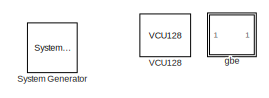
[diagram: root canvas - part 1/2, top center region]
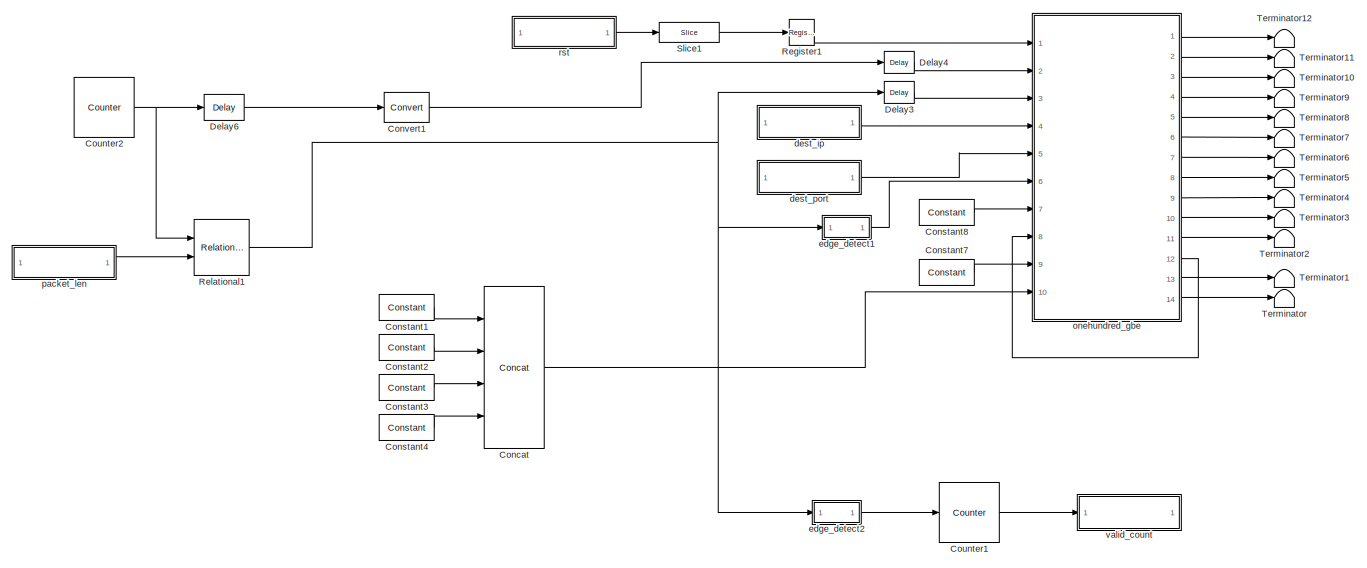
[diagram: root canvas - part 2/2, full width, bottom band]
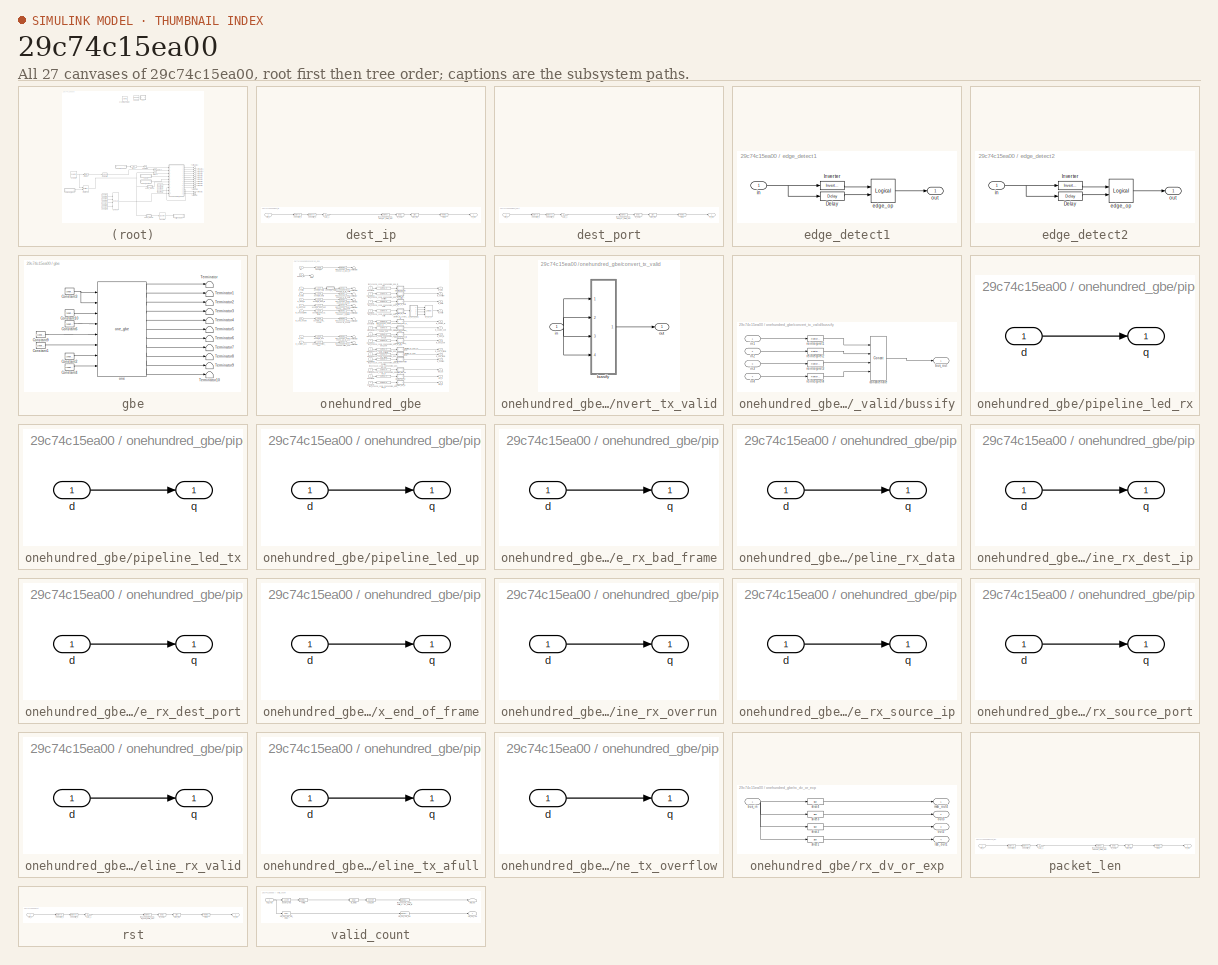
[diagram: thumbnail index - all 27 canvases of the model, root first then tree order]
MODEL slx_29c74c15ea00
KIND model
CONFIG AbsTol = auto
CONFIG EnableMultiTasking = off
CONFIG FixedStep = auto
CONFIG MaxStep = auto
CONFIG MinStep = auto
CONFIG RelTol = 1e-3
CONFIG SampleTimeConstraint = Unconstrained
CONFIG SolverName = VariableStepDiscrete
CONFIG StartTime = 0.0
CONFIG StopTime = 10.0
BLOCK [Reference]  System Generator  REF=xbsIndex_r4/ System Generator
  AttributesFormatString = System\nGenerator
  Ports = []
  SourceBlock = xbsIndex_r4/ System Generator
  SourceType = Xilinx System Generator Block
  Tag = genX
  UserDataPersistent = on
BLOCK [Reference] Concat  REF=xbsIndex_r4/Concat
  Ports = [4, 1]
  SourceBlock = xbsIndex_r4/Concat
  SourceType = Xilinx Bus Concatenator Block
BLOCK [Reference] Constant1  REF=xbsIndex_r4/Constant
  Ports = [0, 1]
  SourceBlock = xbsIndex_r4/Constant
  SourceType = Xilinx Constant Block Block
BLOCK [Reference] Constant2  REF=xbsIndex_r4/Constant
  Ports = [0, 1]
  SourceBlock = xbsIndex_r4/Constant
  SourceType = Xilinx Constant Block Block
BLOCK [Reference] Constant3  REF=xbsIndex_r4/Constant
  Ports = [0, 1]
  SourceBlock = xbsIndex_r4/Constant
  SourceType = Xilinx Constant Block Block
BLOCK [Reference] Constant4  REF=xbsIndex_r4/Constant
  Ports = [0, 1]
  SourceBlock = xbsIndex_r4/Constant
  SourceType = Xilinx Constant Block Block
BLOCK [Reference] Constant7  REF=xbsIndex_r4/Constant
  Ports = [0, 1]
  SourceBlock = xbsIndex_r4/Constant
  SourceType = Xilinx Constant Block Block
BLOCK [Reference] Constant8  REF=xbsIndex_r4/Constant
  Ports = [0, 1]
  SourceBlock = xbsIndex_r4/Constant
  SourceType = Xilinx Constant Block Block
BLOCK [Reference] Convert1  REF=xbsIndex_r4/Convert
  Ports = [1, 1]
  SourceBlock = xbsIndex_r4/Convert
  SourceType = Xilinx Type Converter Block
BLOCK [Reference] Counter1  REF=xbsIndex_r4/Counter
  Ports = [1, 1]
  SourceBlock = xbsIndex_r4/Counter
  SourceType = Xilinx Counter Block
BLOCK [Reference] Counter2  REF=xbsIndex_r4/Counter
  Ports = [0, 1]
  SourceBlock = xbsIndex_r4/Counter
  SourceType = Xilinx Counter Block
BLOCK [Reference] Delay3  REF=xbsIndex_r4/Delay
  Ports = [1, 1]
  SourceBlock = xbsIndex_r4/Delay
  SourceType = Xilinx Delay Block
BLOCK [Reference] Delay4  REF=xbsIndex_r4/Delay
  Ports = [1, 1]
  SourceBlock = xbsIndex_r4/Delay
  SourceType = Xilinx Delay Block
BLOCK [Reference] Delay6  REF=xbsIndex_r4/Delay
  Ports = [1, 1]
  SourceBlock = xbsIndex_r4/Delay
  SourceType = Xilinx Delay Block
BLOCK [Reference] Register1  REF=xbsIndex_r4/Register
  Ports = [1, 1]
  SourceBlock = xbsIndex_r4/Register
  SourceType = Xilinx Register Block
BLOCK [Reference] Relational1  REF=xbsIndex_r4/Relational
  Ports = [2, 1]
  SourceBlock = xbsIndex_r4/Relational
  SourceType = Xilinx Arithmetic Relational Operator Block
BLOCK [Reference] Slice1  REF=xbsIndex_r4/Slice
  Ports = [1, 1]
  SourceBlock = xbsIndex_r4/Slice
  SourceType = Xilinx Bit Slice Extractor Block
BLOCK [Terminator] Terminator
BLOCK [Terminator] Terminator1
BLOCK [Terminator] Terminator10
BLOCK [Terminator] Terminator11
BLOCK [Terminator] Terminator12
BLOCK [Terminator] Terminator2
BLOCK [Terminator] Terminator3
BLOCK [Terminator] Terminator4
BLOCK [Terminator] Terminator5
BLOCK [Terminator] Terminator6
BLOCK [Terminator] Terminator7
BLOCK [Terminator] Terminator8
BLOCK [Terminator] Terminator9
BLOCK [Reference] VCU128  REF=xps_library/Platforms/VCU128  (lib defined in mdl_00b5cec29cd0, mdl_02ab6ecaa3d1, +5 more)
  Ports = []
  SourceBlock = xps_library/Platforms/VCU128
  SourceProductName = CASPER XPS Blockset
  SourceType = xsg core config
  Tag = xps:xsg
BLOCK [SubSystem] dest_ip
  AncestorBlock = xps_library/Memory/software_register
  AttributesFormatString = 1input:uf32.0 = 32 bits
  Ports = [1, 1]
  RequestExecContextInheritance = off
  Tag = xps:sw_reg
BLOCK [DataTypeConversion] dest_ip/convert1_1
  LockScale = on
  OutDataTypeStr = fixdt('ufix32_En0')
  RndMeth = Floor
  SaturateOnIntegerOverflow = off
BLOCK [DataTypeConversion] dest_ip/convert2_1
  ConvertRealWorld = Stored Integer (SI)
  LockScale = on
  OutDataTypeStr = fixdt('ufix32_En0')
  RndMeth = Floor
  SaturateOnIntegerOverflow = off
BLOCK [Gain] dest_ip/gain_1
BLOCK [Outport] dest_ip/in_reg
  VectorParamsAs1DForOutWhenUnconnected = off
BLOCK [Reference] dest_ip/io_delay  REF=xbsIndex_r4/Delay
  Ports = [1, 1]
  SourceBlock = xbsIndex_r4/Delay
  SourceType = Xilinx Delay Block
BLOCK [Reference] dest_ip/reint1  REF=xbsIndex_r4/Reinterpret
  Ports = [1, 1]
  SourceBlock = xbsIndex_r4/Reinterpret
  SourceType = Xilinx Type Reinterpreter Block
BLOCK [Inport] dest_ip/sim_1
BLOCK [Reference] dest_ip/slice_reg  REF=xbsIndex_r4/Slice
  Ports = [1, 1]
  SourceBlock = xbsIndex_r4/Slice
  SourceType = Xilinx Bit Slice Extractor Block
BLOCK [Reference] dest_ip/test_vcu128_100g_dest_ip_user_data_out  REF=xbsIndex_r4/Gateway In
  Ports = [1, 1]
  SourceBlock = xbsIndex_r4/Gateway In
  SourceType = Xilinx Gateway In Block
BLOCK [SubSystem] dest_port
  AncestorBlock = xps_library/Memory/software_register
  AttributesFormatString = 1input:uf16.0 = 16 bits
  Ports = [1, 1]
  RequestExecContextInheritance = off
  Tag = xps:sw_reg
BLOCK [DataTypeConversion] dest_port/convert1_1
  LockScale = on
  OutDataTypeStr = fixdt('ufix16_En0')
  RndMeth = Floor
  SaturateOnIntegerOverflow = off
BLOCK [DataTypeConversion] dest_port/convert2_1
  ConvertRealWorld = Stored Integer (SI)
  LockScale = on
  OutDataTypeStr = fixdt('ufix16_En0')
  RndMeth = Floor
  SaturateOnIntegerOverflow = off
BLOCK [Gain] dest_port/gain_1
BLOCK [Outport] dest_port/in_reg
  VectorParamsAs1DForOutWhenUnconnected = off
BLOCK [Reference] dest_port/io_delay  REF=xbsIndex_r4/Delay
  Ports = [1, 1]
  SourceBlock = xbsIndex_r4/Delay
  SourceType = Xilinx Delay Block
BLOCK [Reference] dest_port/reint1  REF=xbsIndex_r4/Reinterpret
  Ports = [1, 1]
  SourceBlock = xbsIndex_r4/Reinterpret
  SourceType = Xilinx Type Reinterpreter Block
BLOCK [Inport] dest_port/sim_1
BLOCK [Reference] dest_port/slice_reg  REF=xbsIndex_r4/Slice
  Ports = [1, 1]
  SourceBlock = xbsIndex_r4/Slice
  SourceType = Xilinx Bit Slice Extractor Block
BLOCK [Reference] dest_port/test_vcu128_100g_dest_port_user_data_out  REF=xbsIndex_r4/Gateway In
  Ports = [1, 1]
  SourceBlock = xbsIndex_r4/Gateway In
  SourceType = Xilinx Gateway In Block
BLOCK [SubSystem] edge_detect1
  AncestorBlock = casper_library_misc/edge_detect
  AttributesFormatString = falling edges\nactive high
  Ports = [1, 1]
  RequestExecContextInheritance = off
  UserDataPersistent = on
BLOCK [Reference] edge_detect1/Delay  REF=xbsIndex_r4/Delay
  Ports = [1, 1]
  SourceBlock = xbsIndex_r4/Delay
  SourceType = Xilinx Delay Block
BLOCK [Reference] edge_detect1/Inverter  REF=xbsIndex_r4/Inverter
  Ports = [1, 1]
  SourceBlock = xbsIndex_r4/Inverter
  SourceType = Xilinx Inverter Block
BLOCK [Reference] edge_detect1/edge_op  REF=xbsIndex_r4/Logical
  Ports = [2, 1]
  SourceBlock = xbsIndex_r4/Logical
  SourceType = Xilinx Logical Block Block
BLOCK [Inport] edge_detect1/in
BLOCK [Outport] edge_detect1/out
  VectorParamsAs1DForOutWhenUnconnected = off
BLOCK [SubSystem] edge_detect2
  AncestorBlock = casper_library_misc/edge_detect
  AttributesFormatString = rising edges\nactive high
  Ports = [1, 1]
  RequestExecContextInheritance = off
  UserDataPersistent = on
BLOCK [Reference] edge_detect2/Delay  REF=xbsIndex_r4/Delay
  Ports = [1, 1]
  SourceBlock = xbsIndex_r4/Delay
  SourceType = Xilinx Delay Block
BLOCK [Reference] edge_detect2/Inverter  REF=xbsIndex_r4/Inverter
  Ports = [1, 1]
  SourceBlock = xbsIndex_r4/Inverter
  SourceType = Xilinx Inverter Block
BLOCK [Reference] edge_detect2/edge_op  REF=xbsIndex_r4/Logical
  Ports = [2, 1]
  SourceBlock = xbsIndex_r4/Logical
  SourceType = Xilinx Logical Block Block
BLOCK [Inport] edge_detect2/in
BLOCK [Outport] edge_detect2/out
  VectorParamsAs1DForOutWhenUnconnected = off
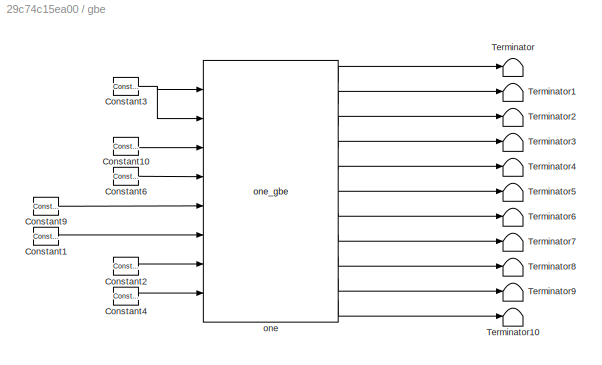
BLOCK [SubSystem] gbe
  Ports = []
  RequestExecContextInheritance = off
BLOCK [Reference] gbe/Constant1  REF=xbsIndex_r4/Constant
  Ports = [0, 1]
  SourceBlock = xbsIndex_r4/Constant
  SourceType = Xilinx Constant Block Block
BLOCK [Reference] gbe/Constant10  REF=xbsIndex_r4/Constant
  Ports = [0, 1]
  SourceBlock = xbsIndex_r4/Constant
  SourceType = Xilinx Constant Block Block
BLOCK [Reference] gbe/Constant2  REF=xbsIndex_r4/Constant
  Ports = [0, 1]
  SourceBlock = xbsIndex_r4/Constant
  SourceType = Xilinx Constant Block Block
BLOCK [Reference] gbe/Constant3  REF=xbsIndex_r4/Constant
  Ports = [0, 1]
  SourceBlock = xbsIndex_r4/Constant
  SourceType = Xilinx Constant Block Block
BLOCK [Reference] gbe/Constant4  REF=xbsIndex_r4/Constant
  Ports = [0, 1]
  SourceBlock = xbsIndex_r4/Constant
  SourceType = Xilinx Constant Block Block
BLOCK [Reference] gbe/Constant6  REF=xbsIndex_r4/Constant
  Ports = [0, 1]
  SourceBlock = xbsIndex_r4/Constant
  SourceType = Xilinx Constant Block Block
BLOCK [Reference] gbe/Constant9  REF=xbsIndex_r4/Constant
  Ports = [0, 1]
  SourceBlock = xbsIndex_r4/Constant
  SourceType = Xilinx Constant Block Block
BLOCK [Terminator] gbe/Terminator
BLOCK [Terminator] gbe/Terminator1
BLOCK [Terminator] gbe/Terminator10
BLOCK [Terminator] gbe/Terminator2
BLOCK [Terminator] gbe/Terminator3
BLOCK [Terminator] gbe/Terminator4
BLOCK [Terminator] gbe/Terminator5
BLOCK [Terminator] gbe/Terminator6
BLOCK [Terminator] gbe/Terminator7
BLOCK [Terminator] gbe/Terminator8
BLOCK [Terminator] gbe/Terminator9
BLOCK [Reference] gbe/one  REF=xps_library/IO/one_gbe  (lib defined in mdl_00b5cec29cd0, mdl_02ab6ecaa3d1, +5 more)
  Ports = [8, 11]
  SourceBlock = xps_library/IO/one_gbe
  SourceProductName = CASPER XPS Blockset
  SourceType = one_GbE
  Tag = xps:onegbe
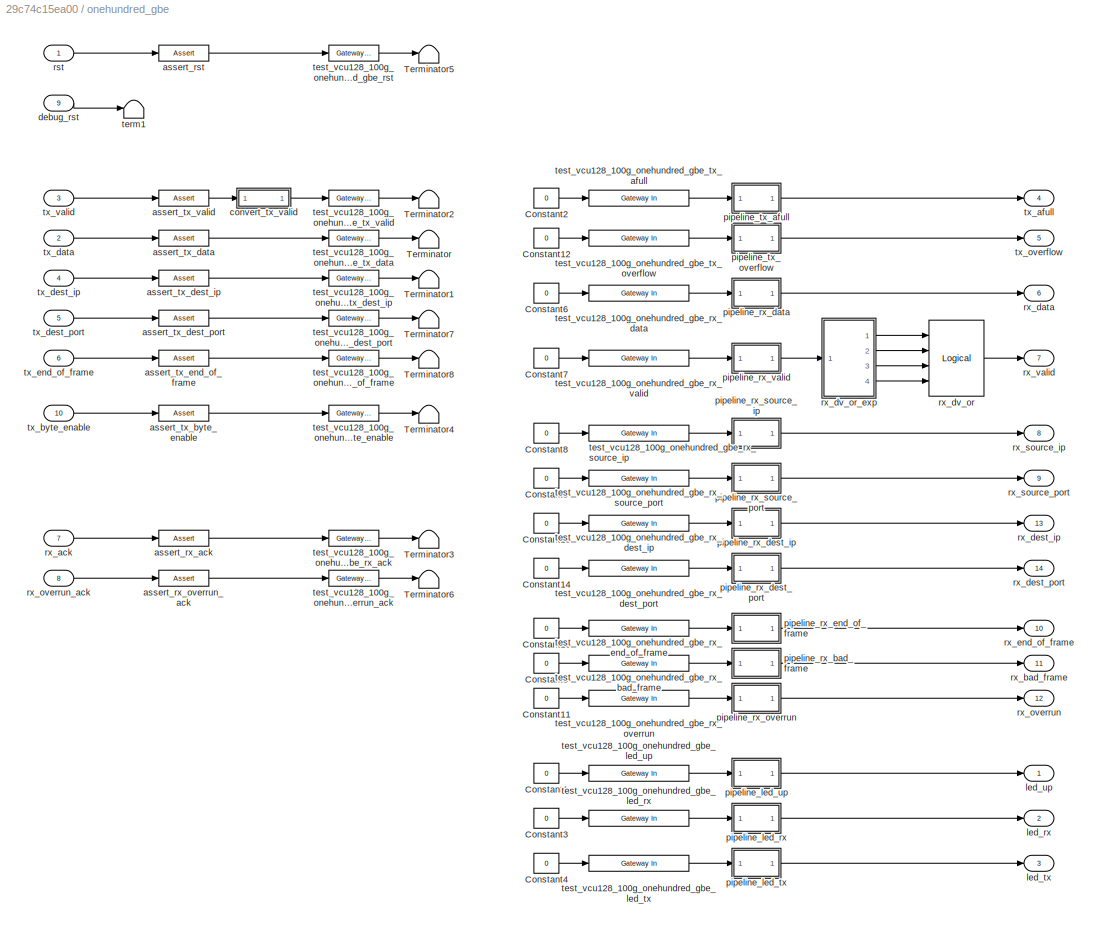
BLOCK [SubSystem] onehundred_gbe
  AncestorBlock = xps_library/IO/onehundred_gbe
  AttributesFormatString = incoming_latency=0
  Ports = [10, 14]
  RequestExecContextInheritance = off
  Tag = xps:onehundred_gbe
BLOCK [Constant] onehundred_gbe/Constant1
  Value = 0
BLOCK [Constant] onehundred_gbe/Constant10
  Value = 0
BLOCK [Constant] onehundred_gbe/Constant11
  Value = 0
BLOCK [Constant] onehundred_gbe/Constant12
  Value = 0
BLOCK [Constant] onehundred_gbe/Constant13
  Value = 0
BLOCK [Constant] onehundred_gbe/Constant14
  Value = 0
BLOCK [Constant] onehundred_gbe/Constant2
  Value = 0
BLOCK [Constant] onehundred_gbe/Constant3
  Value = 0
BLOCK [Constant] onehundred_gbe/Constant4
  Value = 0
BLOCK [Constant] onehundred_gbe/Constant5
  Value = 0
BLOCK [Constant] onehundred_gbe/Constant6
  Value = 0
BLOCK [Constant] onehundred_gbe/Constant7
  Value = 0
BLOCK [Constant] onehundred_gbe/Constant8
  Value = 0
BLOCK [Constant] onehundred_gbe/Constant9
  Value = 0
BLOCK [Terminator] onehundred_gbe/Terminator
BLOCK [Terminator] onehundred_gbe/Terminator1
BLOCK [Terminator] onehundred_gbe/Terminator2
BLOCK [Terminator] onehundred_gbe/Terminator3
BLOCK [Terminator] onehundred_gbe/Terminator4
BLOCK [Terminator] onehundred_gbe/Terminator5
BLOCK [Terminator] onehundred_gbe/Terminator6
BLOCK [Terminator] onehundred_gbe/Terminator7
BLOCK [Terminator] onehundred_gbe/Terminator8
BLOCK [Reference] onehundred_gbe/assert_rst  REF=xbsIndex_r4/Assert
  Ports = [1, 1]
  SourceBlock = xbsIndex_r4/Assert
  SourceType = Xilinx Assert Block
BLOCK [Reference] onehundred_gbe/assert_rx_ack  REF=xbsIndex_r4/Assert
  Ports = [1, 1]
  SourceBlock = xbsIndex_r4/Assert
  SourceType = Xilinx Assert Block
BLOCK [Reference] onehundred_gbe/assert_rx_overrun_ack  REF=xbsIndex_r4/Assert
  Ports = [1, 1]
  SourceBlock = xbsIndex_r4/Assert
  SourceType = Xilinx Assert Block
BLOCK [Reference] onehundred_gbe/assert_tx_byte_enable  REF=xbsIndex_r4/Assert
  Ports = [1, 1]
  SourceBlock = xbsIndex_r4/Assert
  SourceType = Xilinx Assert Block
BLOCK [Reference] onehundred_gbe/assert_tx_data  REF=xbsIndex_r4/Assert
  Ports = [1, 1]
  SourceBlock = xbsIndex_r4/Assert
  SourceType = Xilinx Assert Block
BLOCK [Reference] onehundred_gbe/assert_tx_dest_ip  REF=xbsIndex_r4/Assert
  Ports = [1, 1]
  SourceBlock = xbsIndex_r4/Assert
  SourceType = Xilinx Assert Block
BLOCK [Reference] onehundred_gbe/assert_tx_dest_port  REF=xbsIndex_r4/Assert
  Ports = [1, 1]
  SourceBlock = xbsIndex_r4/Assert
  SourceType = Xilinx Assert Block
BLOCK [Reference] onehundred_gbe/assert_tx_end_of_frame  REF=xbsIndex_r4/Assert
  Ports = [1, 1]
  SourceBlock = xbsIndex_r4/Assert
  SourceType = Xilinx Assert Block
BLOCK [Reference] onehundred_gbe/assert_tx_valid  REF=xbsIndex_r4/Assert
  Ports = [1, 1]
  SourceBlock = xbsIndex_r4/Assert
  SourceType = Xilinx Assert Block
BLOCK [SubSystem] onehundred_gbe/convert_tx_valid
  AncestorBlock = casper_library_bus/bus_replicate
  Ports = [1, 1]
  RequestExecContextInheritance = off
  UserDataPersistent = on
BLOCK [SubSystem] onehundred_gbe/convert_tx_valid/bussify
  AncestorBlock = casper_library_flow_control/bus_create
  Ports = [4, 1]
  RequestExecContextInheritance = off
  UserDataPersistent = on
BLOCK [Outport] onehundred_gbe/convert_tx_valid/bussify/bus_out
  VectorParamsAs1DForOutWhenUnconnected = off
BLOCK [Reference] onehundred_gbe/convert_tx_valid/bussify/concatenate  REF=xbsIndex_r4/Concat
  Ports = [4, 1]
  SourceBlock = xbsIndex_r4/Concat
  SourceType = Xilinx Bus Concatenator Block
BLOCK [Inport] onehundred_gbe/convert_tx_valid/bussify/in1
BLOCK [Inport] onehundred_gbe/convert_tx_valid/bussify/in2
  Port = 2
BLOCK [Inport] onehundred_gbe/convert_tx_valid/bussify/in3
  Port = 3
BLOCK [Inport] onehundred_gbe/convert_tx_valid/bussify/in4
  Port = 4
BLOCK [Reference] onehundred_gbe/convert_tx_valid/bussify/reinterpret1  REF=xbsIndex_r4/Reinterpret
  Ports = [1, 1]
  SourceBlock = xbsIndex_r4/Reinterpret
  SourceType = Xilinx Type Reinterpreter Block
BLOCK [Reference] onehundred_gbe/convert_tx_valid/bussify/reinterpret2  REF=xbsIndex_r4/Reinterpret
  Ports = [1, 1]
  SourceBlock = xbsIndex_r4/Reinterpret
  SourceType = Xilinx Type Reinterpreter Block
BLOCK [Reference] onehundred_gbe/convert_tx_valid/bussify/reinterpret3  REF=xbsIndex_r4/Reinterpret
  Ports = [1, 1]
  SourceBlock = xbsIndex_r4/Reinterpret
  SourceType = Xilinx Type Reinterpreter Block
BLOCK [Reference] onehundred_gbe/convert_tx_valid/bussify/reinterpret4  REF=xbsIndex_r4/Reinterpret
  Ports = [1, 1]
  SourceBlock = xbsIndex_r4/Reinterpret
  SourceType = Xilinx Type Reinterpreter Block
BLOCK [Inport] onehundred_gbe/convert_tx_valid/in
BLOCK [Outport] onehundred_gbe/convert_tx_valid/out
  VectorParamsAs1DForOutWhenUnconnected = off
BLOCK [Inport] onehundred_gbe/debug_rst
  Port = 9
BLOCK [Outport] onehundred_gbe/led_rx
  Port = 2
  VectorParamsAs1DForOutWhenUnconnected = off
BLOCK [Outport] onehundred_gbe/led_tx
  Port = 3
  VectorParamsAs1DForOutWhenUnconnected = off
BLOCK [Outport] onehundred_gbe/led_up
  VectorParamsAs1DForOutWhenUnconnected = off
BLOCK [SubSystem] onehundred_gbe/pipeline_led_rx
  AncestorBlock = casper_library_delays/pipeline
  AttributesFormatString = Latency = %<latency>
  Ports = [1, 1]
  RequestExecContextInheritance = off
  UserDataPersistent = on
BLOCK [Inport] onehundred_gbe/pipeline_led_rx/d
BLOCK [Outport] onehundred_gbe/pipeline_led_rx/q
  VectorParamsAs1DForOutWhenUnconnected = off
BLOCK [SubSystem] onehundred_gbe/pipeline_led_tx
  AncestorBlock = casper_library_delays/pipeline
  AttributesFormatString = Latency = %<latency>
  Ports = [1, 1]
  RequestExecContextInheritance = off
  UserDataPersistent = on
BLOCK [Inport] onehundred_gbe/pipeline_led_tx/d
BLOCK [Outport] onehundred_gbe/pipeline_led_tx/q
  VectorParamsAs1DForOutWhenUnconnected = off
BLOCK [SubSystem] onehundred_gbe/pipeline_led_up
  AncestorBlock = casper_library_delays/pipeline
  AttributesFormatString = Latency = %<latency>
  Ports = [1, 1]
  RequestExecContextInheritance = off
  UserDataPersistent = on
BLOCK [Inport] onehundred_gbe/pipeline_led_up/d
BLOCK [Outport] onehundred_gbe/pipeline_led_up/q
  VectorParamsAs1DForOutWhenUnconnected = off
BLOCK [SubSystem] onehundred_gbe/pipeline_rx_bad_frame
  AncestorBlock = casper_library_delays/pipeline
  AttributesFormatString = Latency = %<latency>
  Ports = [1, 1]
  RequestExecContextInheritance = off
  UserDataPersistent = on
BLOCK [Inport] onehundred_gbe/pipeline_rx_bad_frame/d
BLOCK [Outport] onehundred_gbe/pipeline_rx_bad_frame/q
  VectorParamsAs1DForOutWhenUnconnected = off
BLOCK [SubSystem] onehundred_gbe/pipeline_rx_data
  AncestorBlock = casper_library_delays/pipeline
  AttributesFormatString = Latency = %<latency>
  Ports = [1, 1]
  RequestExecContextInheritance = off
  UserDataPersistent = on
BLOCK [Inport] onehundred_gbe/pipeline_rx_data/d
BLOCK [Outport] onehundred_gbe/pipeline_rx_data/q
  VectorParamsAs1DForOutWhenUnconnected = off
BLOCK [SubSystem] onehundred_gbe/pipeline_rx_dest_ip
  AncestorBlock = casper_library_delays/pipeline
  AttributesFormatString = Latency = %<latency>
  Ports = [1, 1]
  RequestExecContextInheritance = off
  UserDataPersistent = on
BLOCK [Inport] onehundred_gbe/pipeline_rx_dest_ip/d
BLOCK [Outport] onehundred_gbe/pipeline_rx_dest_ip/q
  VectorParamsAs1DForOutWhenUnconnected = off
BLOCK [SubSystem] onehundred_gbe/pipeline_rx_dest_port
  AncestorBlock = casper_library_delays/pipeline
  AttributesFormatString = Latency = %<latency>
  Ports = [1, 1]
  RequestExecContextInheritance = off
  UserDataPersistent = on
BLOCK [Inport] onehundred_gbe/pipeline_rx_dest_port/d
BLOCK [Outport] onehundred_gbe/pipeline_rx_dest_port/q
  VectorParamsAs1DForOutWhenUnconnected = off
BLOCK [SubSystem] onehundred_gbe/pipeline_rx_end_of_frame
  AncestorBlock = casper_library_delays/pipeline
  AttributesFormatString = Latency = %<latency>
  Ports = [1, 1]
  RequestExecContextInheritance = off
  UserDataPersistent = on
BLOCK [Inport] onehundred_gbe/pipeline_rx_end_of_frame/d
BLOCK [Outport] onehundred_gbe/pipeline_rx_end_of_frame/q
  VectorParamsAs1DForOutWhenUnconnected = off
BLOCK [SubSystem] onehundred_gbe/pipeline_rx_overrun
  AncestorBlock = casper_library_delays/pipeline
  AttributesFormatString = Latency = %<latency>
  Ports = [1, 1]
  RequestExecContextInheritance = off
  UserDataPersistent = on
BLOCK [Inport] onehundred_gbe/pipeline_rx_overrun/d
BLOCK [Outport] onehundred_gbe/pipeline_rx_overrun/q
  VectorParamsAs1DForOutWhenUnconnected = off
BLOCK [SubSystem] onehundred_gbe/pipeline_rx_source_ip
  AncestorBlock = casper_library_delays/pipeline
  AttributesFormatString = Latency = %<latency>
  Ports = [1, 1]
  RequestExecContextInheritance = off
  UserDataPersistent = on
BLOCK [Inport] onehundred_gbe/pipeline_rx_source_ip/d
BLOCK [Outport] onehundred_gbe/pipeline_rx_source_ip/q
  VectorParamsAs1DForOutWhenUnconnected = off
BLOCK [SubSystem] onehundred_gbe/pipeline_rx_source_port
  AncestorBlock = casper_library_delays/pipeline
  AttributesFormatString = Latency = %<latency>
  Ports = [1, 1]
  RequestExecContextInheritance = off
  UserDataPersistent = on
BLOCK [Inport] onehundred_gbe/pipeline_rx_source_port/d
BLOCK [Outport] onehundred_gbe/pipeline_rx_source_port/q
  VectorParamsAs1DForOutWhenUnconnected = off
BLOCK [SubSystem] onehundred_gbe/pipeline_rx_valid
  AncestorBlock = casper_library_delays/pipeline
  AttributesFormatString = Latency = %<latency>
  Ports = [1, 1]
  RequestExecContextInheritance = off
  UserDataPersistent = on
BLOCK [Inport] onehundred_gbe/pipeline_rx_valid/d
BLOCK [Outport] onehundred_gbe/pipeline_rx_valid/q
  VectorParamsAs1DForOutWhenUnconnected = off
BLOCK [SubSystem] onehundred_gbe/pipeline_tx_afull
  AncestorBlock = casper_library_delays/pipeline
  AttributesFormatString = Latency = %<latency>
  Ports = [1, 1]
  RequestExecContextInheritance = off
  UserDataPersistent = on
BLOCK [Inport] onehundred_gbe/pipeline_tx_afull/d
BLOCK [Outport] onehundred_gbe/pipeline_tx_afull/q
  VectorParamsAs1DForOutWhenUnconnected = off
BLOCK [SubSystem] onehundred_gbe/pipeline_tx_overflow
  AncestorBlock = casper_library_delays/pipeline
  AttributesFormatString = Latency = %<latency>
  Ports = [1, 1]
  RequestExecContextInheritance = off
  UserDataPersistent = on
BLOCK [Inport] onehundred_gbe/pipeline_tx_overflow/d
BLOCK [Outport] onehundred_gbe/pipeline_tx_overflow/q
  VectorParamsAs1DForOutWhenUnconnected = off
BLOCK [Inport] onehundred_gbe/rst
BLOCK [Inport] onehundred_gbe/rx_ack
  Port = 7
BLOCK [Outport] onehundred_gbe/rx_bad_frame
  Port = 11
  VectorParamsAs1DForOutWhenUnconnected = off
BLOCK [Outport] onehundred_gbe/rx_data
  Port = 6
  VectorParamsAs1DForOutWhenUnconnected = off
BLOCK [Outport] onehundred_gbe/rx_dest_ip
  Port = 13
  VectorParamsAs1DForOutWhenUnconnected = off
BLOCK [Outport] onehundred_gbe/rx_dest_port
  Port = 14
  VectorParamsAs1DForOutWhenUnconnected = off
BLOCK [Reference] onehundred_gbe/rx_dv_or  REF=xbsIndex_r4/Logical
  Ports = [4, 1]
  SourceBlock = xbsIndex_r4/Logical
  SourceType = Xilinx Logical Block Block
BLOCK [SubSystem] onehundred_gbe/rx_dv_or_exp
  AncestorBlock = casper_library_flow_control/bus_expand
  AttributesFormatString = 4 outputs
  Ports = [1, 4]
  RequestExecContextInheritance = off
  UserDataPersistent = on
BLOCK [Inport] onehundred_gbe/rx_dv_or_exp/bus_in
BLOCK [Outport] onehundred_gbe/rx_dv_or_exp/lsb_out1
  Port = 4
  VectorParamsAs1DForOutWhenUnconnected = off
BLOCK [Outport] onehundred_gbe/rx_dv_or_exp/msb_out4
  VectorParamsAs1DForOutWhenUnconnected = off
BLOCK [Outport] onehundred_gbe/rx_dv_or_exp/out2
  Port = 3
  VectorParamsAs1DForOutWhenUnconnected = off
BLOCK [Outport] onehundred_gbe/rx_dv_or_exp/out3
  Port = 2
  VectorParamsAs1DForOutWhenUnconnected = off
BLOCK [Reference] onehundred_gbe/rx_dv_or_exp/slice1  REF=xbsIndex_r4/Slice
  Ports = [1, 1]
  SourceBlock = xbsIndex_r4/Slice
  SourceType = Xilinx Bit Slice Extractor Block
BLOCK [Reference] onehundred_gbe/rx_dv_or_exp/slice2  REF=xbsIndex_r4/Slice
  Ports = [1, 1]
  SourceBlock = xbsIndex_r4/Slice
  SourceType = Xilinx Bit Slice Extractor Block
BLOCK [Reference] onehundred_gbe/rx_dv_or_exp/slice3  REF=xbsIndex_r4/Slice
  Ports = [1, 1]
  SourceBlock = xbsIndex_r4/Slice
  SourceType = Xilinx Bit Slice Extractor Block
BLOCK [Reference] onehundred_gbe/rx_dv_or_exp/slice4  REF=xbsIndex_r4/Slice
  Ports = [1, 1]
  SourceBlock = xbsIndex_r4/Slice
  SourceType = Xilinx Bit Slice Extractor Block
BLOCK [Outport] onehundred_gbe/rx_end_of_frame
  Port = 10
  VectorParamsAs1DForOutWhenUnconnected = off
BLOCK [Outport] onehundred_gbe/rx_overrun
  Port = 12
  VectorParamsAs1DForOutWhenUnconnected = off
BLOCK [Inport] onehundred_gbe/rx_overrun_ack
  Port = 8
BLOCK [Outport] onehundred_gbe/rx_source_ip
  Port = 8
  VectorParamsAs1DForOutWhenUnconnected = off
BLOCK [Outport] onehundred_gbe/rx_source_port
  Port = 9
  VectorParamsAs1DForOutWhenUnconnected = off
BLOCK [Outport] onehundred_gbe/rx_valid
  Port = 7
  VectorParamsAs1DForOutWhenUnconnected = off
BLOCK [Terminator] onehundred_gbe/term1
BLOCK [Reference] onehundred_gbe/test_vcu128_100g_onehundred_gbe_led_rx  REF=xbsIndex_r4/Gateway In
  Ports = [1, 1]
  SourceBlock = xbsIndex_r4/Gateway In
  SourceType = Xilinx Gateway In Block
BLOCK [Reference] onehundred_gbe/test_vcu128_100g_onehundred_gbe_led_tx  REF=xbsIndex_r4/Gateway In
  Ports = [1, 1]
  SourceBlock = xbsIndex_r4/Gateway In
  SourceType = Xilinx Gateway In Block
BLOCK [Reference] onehundred_gbe/test_vcu128_100g_onehundred_gbe_led_up  REF=xbsIndex_r4/Gateway In
  Ports = [1, 1]
  SourceBlock = xbsIndex_r4/Gateway In
  SourceType = Xilinx Gateway In Block
BLOCK [Reference] onehundred_gbe/test_vcu128_100g_onehundred_gbe_rst  REF=xbsIndex_r4/Gateway Out
  Ports = [1, 1]
  SourceBlock = xbsIndex_r4/Gateway Out
  SourceType = Xilinx Gateway Out Block
BLOCK [Reference] onehundred_gbe/test_vcu128_100g_onehundred_gbe_rx_ack  REF=xbsIndex_r4/Gateway Out
  Ports = [1, 1]
  SourceBlock = xbsIndex_r4/Gateway Out
  SourceType = Xilinx Gateway Out Block
BLOCK [Reference] onehundred_gbe/test_vcu128_100g_onehundred_gbe_rx_bad_frame  REF=xbsIndex_r4/Gateway In
  Ports = [1, 1]
  SourceBlock = xbsIndex_r4/Gateway In
  SourceType = Xilinx Gateway In Block
BLOCK [Reference] onehundred_gbe/test_vcu128_100g_onehundred_gbe_rx_data  REF=xbsIndex_r4/Gateway In
  Ports = [1, 1]
  SourceBlock = xbsIndex_r4/Gateway In
  SourceType = Xilinx Gateway In Block
BLOCK [Reference] onehundred_gbe/test_vcu128_100g_onehundred_gbe_rx_dest_ip  REF=xbsIndex_r4/Gateway In
  Ports = [1, 1]
  SourceBlock = xbsIndex_r4/Gateway In
  SourceType = Xilinx Gateway In Block
BLOCK [Reference] onehundred_gbe/test_vcu128_100g_onehundred_gbe_rx_dest_port  REF=xbsIndex_r4/Gateway In
  Ports = [1, 1]
  SourceBlock = xbsIndex_r4/Gateway In
  SourceType = Xilinx Gateway In Block
BLOCK [Reference] onehundred_gbe/test_vcu128_100g_onehundred_gbe_rx_end_of_frame  REF=xbsIndex_r4/Gateway In
  Ports = [1, 1]
  SourceBlock = xbsIndex_r4/Gateway In
  SourceType = Xilinx Gateway In Block
BLOCK [Reference] onehundred_gbe/test_vcu128_100g_onehundred_gbe_rx_overrun  REF=xbsIndex_r4/Gateway In
  Ports = [1, 1]
  SourceBlock = xbsIndex_r4/Gateway In
  SourceType = Xilinx Gateway In Block
BLOCK [Reference] onehundred_gbe/test_vcu128_100g_onehundred_gbe_rx_overrun_ack  REF=xbsIndex_r4/Gateway Out
  Ports = [1, 1]
  SourceBlock = xbsIndex_r4/Gateway Out
  SourceType = Xilinx Gateway Out Block
BLOCK [Reference] onehundred_gbe/test_vcu128_100g_onehundred_gbe_rx_source_ip  REF=xbsIndex_r4/Gateway In
  Ports = [1, 1]
  SourceBlock = xbsIndex_r4/Gateway In
  SourceType = Xilinx Gateway In Block
BLOCK [Reference] onehundred_gbe/test_vcu128_100g_onehundred_gbe_rx_source_port  REF=xbsIndex_r4/Gateway In
  Ports = [1, 1]
  SourceBlock = xbsIndex_r4/Gateway In
  SourceType = Xilinx Gateway In Block
BLOCK [Reference] onehundred_gbe/test_vcu128_100g_onehundred_gbe_rx_valid  REF=xbsIndex_r4/Gateway In
  Ports = [1, 1]
  SourceBlock = xbsIndex_r4/Gateway In
  SourceType = Xilinx Gateway In Block
BLOCK [Reference] onehundred_gbe/test_vcu128_100g_onehundred_gbe_tx_afull  REF=xbsIndex_r4/Gateway In
  Ports = [1, 1]
  SourceBlock = xbsIndex_r4/Gateway In
  SourceType = Xilinx Gateway In Block
BLOCK [Reference] onehundred_gbe/test_vcu128_100g_onehundred_gbe_tx_byte_enable  REF=xbsIndex_r4/Gateway Out
  Ports = [1, 1]
  SourceBlock = xbsIndex_r4/Gateway Out
  SourceType = Xilinx Gateway Out Block
BLOCK [Reference] onehundred_gbe/test_vcu128_100g_onehundred_gbe_tx_data  REF=xbsIndex_r4/Gateway Out
  Ports = [1, 1]
  SourceBlock = xbsIndex_r4/Gateway Out
  SourceType = Xilinx Gateway Out Block
BLOCK [Reference] onehundred_gbe/test_vcu128_100g_onehundred_gbe_tx_dest_ip  REF=xbsIndex_r4/Gateway Out
  Ports = [1, 1]
  SourceBlock = xbsIndex_r4/Gateway Out
  SourceType = Xilinx Gateway Out Block
BLOCK [Reference] onehundred_gbe/test_vcu128_100g_onehundred_gbe_tx_dest_port  REF=xbsIndex_r4/Gateway Out
  Ports = [1, 1]
  SourceBlock = xbsIndex_r4/Gateway Out
  SourceType = Xilinx Gateway Out Block
BLOCK [Reference] onehundred_gbe/test_vcu128_100g_onehundred_gbe_tx_end_of_frame  REF=xbsIndex_r4/Gateway Out
  Ports = [1, 1]
  SourceBlock = xbsIndex_r4/Gateway Out
  SourceType = Xilinx Gateway Out Block
BLOCK [Reference] onehundred_gbe/test_vcu128_100g_onehundred_gbe_tx_overflow  REF=xbsIndex_r4/Gateway In
  Ports = [1, 1]
  SourceBlock = xbsIndex_r4/Gateway In
  SourceType = Xilinx Gateway In Block
BLOCK [Reference] onehundred_gbe/test_vcu128_100g_onehundred_gbe_tx_valid  REF=xbsIndex_r4/Gateway Out
  Ports = [1, 1]
  SourceBlock = xbsIndex_r4/Gateway Out
  SourceType = Xilinx Gateway Out Block
BLOCK [Outport] onehundred_gbe/tx_afull
  Port = 4
  VectorParamsAs1DForOutWhenUnconnected = off
BLOCK [Inport] onehundred_gbe/tx_byte_enable
  Port = 10
BLOCK [Inport] onehundred_gbe/tx_data
  Port = 2
BLOCK [Inport] onehundred_gbe/tx_dest_ip
  Port = 4
BLOCK [Inport] onehundred_gbe/tx_dest_port
  Port = 5
BLOCK [Inport] onehundred_gbe/tx_end_of_frame
  Port = 6
BLOCK [Outport] onehundred_gbe/tx_overflow
  Port = 5
  VectorParamsAs1DForOutWhenUnconnected = off
BLOCK [Inport] onehundred_gbe/tx_valid
  Port = 3
BLOCK [SubSystem] packet_len
  AncestorBlock = xps_library/Memory/software_register
  AttributesFormatString = 1input:uf32.0 = 32 bits
  Ports = [1, 1]
  RequestExecContextInheritance = off
  Tag = xps:sw_reg
BLOCK [DataTypeConversion] packet_len/convert1_1
  LockScale = on
  OutDataTypeStr = fixdt('ufix32_En0')
  RndMeth = Floor
  SaturateOnIntegerOverflow = off
BLOCK [DataTypeConversion] packet_len/convert2_1
  ConvertRealWorld = Stored Integer (SI)
  LockScale = on
  OutDataTypeStr = fixdt('ufix32_En0')
  RndMeth = Floor
  SaturateOnIntegerOverflow = off
BLOCK [Gain] packet_len/gain_1
BLOCK [Outport] packet_len/in_reg
  VectorParamsAs1DForOutWhenUnconnected = off
BLOCK [Reference] packet_len/io_delay  REF=xbsIndex_r4/Delay
  Ports = [1, 1]
  SourceBlock = xbsIndex_r4/Delay
  SourceType = Xilinx Delay Block
BLOCK [Reference] packet_len/reint1  REF=xbsIndex_r4/Reinterpret
  Ports = [1, 1]
  SourceBlock = xbsIndex_r4/Reinterpret
  SourceType = Xilinx Type Reinterpreter Block
BLOCK [Inport] packet_len/sim_1
BLOCK [Reference] packet_len/slice_reg  REF=xbsIndex_r4/Slice
  Ports = [1, 1]
  SourceBlock = xbsIndex_r4/Slice
  SourceType = Xilinx Bit Slice Extractor Block
BLOCK [Reference] packet_len/test_vcu128_100g_packet_len_user_data_out  REF=xbsIndex_r4/Gateway In
  Ports = [1, 1]
  SourceBlock = xbsIndex_r4/Gateway In
  SourceType = Xilinx Gateway In Block
BLOCK [SubSystem] rst
  AncestorBlock = xps_library/Memory/software_register
  AttributesFormatString = 1input:uf32.0 = 32 bits
  Ports = [1, 1]
  RequestExecContextInheritance = off
  Tag = xps:sw_reg
BLOCK [DataTypeConversion] rst/convert1_1
  LockScale = on
  OutDataTypeStr = fixdt('ufix32_En0')
  RndMeth = Floor
  SaturateOnIntegerOverflow = off
BLOCK [DataTypeConversion] rst/convert2_1
  ConvertRealWorld = Stored Integer (SI)
  LockScale = on
  OutDataTypeStr = fixdt('ufix32_En0')
  RndMeth = Floor
  SaturateOnIntegerOverflow = off
BLOCK [Gain] rst/gain_1
BLOCK [Outport] rst/in_reg
  VectorParamsAs1DForOutWhenUnconnected = off
BLOCK [Reference] rst/io_delay  REF=xbsIndex_r4/Delay
  Ports = [1, 1]
  SourceBlock = xbsIndex_r4/Delay
  SourceType = Xilinx Delay Block
BLOCK [Reference] rst/reint1  REF=xbsIndex_r4/Reinterpret
  Ports = [1, 1]
  SourceBlock = xbsIndex_r4/Reinterpret
  SourceType = Xilinx Type Reinterpreter Block
BLOCK [Inport] rst/sim_1
BLOCK [Reference] rst/slice_reg  REF=xbsIndex_r4/Slice
  Ports = [1, 1]
  SourceBlock = xbsIndex_r4/Slice
  SourceType = Xilinx Bit Slice Extractor Block
BLOCK [Reference] rst/test_vcu128_100g_rst_user_data_out  REF=xbsIndex_r4/Gateway In
  Ports = [1, 1]
  SourceBlock = xbsIndex_r4/Gateway In
  SourceType = Xilinx Gateway In Block
BLOCK [SubSystem] valid_count
  AncestorBlock = xps_library/Memory/software_register
  AttributesFormatString = 1output:uf32.0 = 32 bits
  Ports = [1, 1]
  RequestExecContextInheritance = off
  Tag = xps:sw_reg
BLOCK [Reference] valid_count/assert_reg  REF=xbsIndex_r4/Assert
  Ports = [1, 1]
  SourceBlock = xbsIndex_r4/Assert
  SourceType = Xilinx Assert Block
BLOCK [Reference] valid_count/cast_gw  REF=xbsIndex_r4/Convert
  Ports = [1, 1]
  SourceBlock = xbsIndex_r4/Convert
  SourceType = Xilinx Type Converter Block
BLOCK [Reference] valid_count/io_delay  REF=xbsIndex_r4/Delay
  Ports = [1, 1]
  SourceBlock = xbsIndex_r4/Delay
  SourceType = Xilinx Delay Block
BLOCK [Inport] valid_count/out_reg
BLOCK [Reference] valid_count/reint1  REF=xbsIndex_r4/Reinterpret
  Ports = [1, 1]
  SourceBlock = xbsIndex_r4/Reinterpret
  SourceType = Xilinx Type Reinterpreter Block
BLOCK [Terminator] valid_count/sim_out
BLOCK [Outport] valid_count/sim_out_reg
  VectorParamsAs1DForOutWhenUnconnected = off
BLOCK [Reference] valid_count/sim_out_reg_gw  REF=xbsIndex_r4/Gateway Out
  Ports = [1, 1]
  SourceBlock = xbsIndex_r4/Gateway Out
  SourceType = Xilinx Gateway Out Block
BLOCK [Reference] valid_count/sim_out_reg_sim_delay  REF=xbsIndex_r4/Delay
  Ports = [1, 1]
  SourceBlock = xbsIndex_r4/Delay
  SourceType = Xilinx Delay Block
BLOCK [Reference] valid_count/test_vcu128_100g_valid_count_user_data_in  REF=xbsIndex_r4/Gateway Out
  Ports = [1, 1]
  SourceBlock = xbsIndex_r4/Gateway Out
  SourceType = Xilinx Gateway Out Block
LINE Concat:1 -> onehundred_gbe:10
LINE Constant1:1 -> Concat:1
LINE Constant2:1 -> Concat:2
LINE Constant3:1 -> Concat:3
LINE Constant4:1 -> Concat:4
LINE Constant7:1 -> onehundred_gbe:9
LINE Constant8:1 -> onehundred_gbe:7
LINE Convert1:1 -> Delay4:1
LINE Counter1:1 -> valid_count:1
NET Counter2:1 -> Delay6:1, Relational1:1
LINE Delay3:1 -> onehundred_gbe:3
LINE Delay4:1 -> onehundred_gbe:2
LINE Delay6:1 -> Convert1:1
LINE Register1:1 -> onehundred_gbe:1
NET Relational1:1 -> Delay3:1, edge_detect1:1, edge_detect2:1
LINE Slice1:1 -> Register1:1
LINE dest_ip:1 -> onehundred_gbe:4
LINE dest_port:1 -> onehundred_gbe:5
LINE edge_detect1:1 -> onehundred_gbe:6
LINE edge_detect2:1 -> Counter1:1
LINE gbe/Constant10:1 -> gbe/one:3
LINE gbe/Constant1:1 -> gbe/one:6
LINE gbe/Constant2:1 -> gbe/one:7
NET gbe/Constant3:1 -> gbe/one:1, gbe/one:2
LINE gbe/Constant4:1 -> gbe/one:8
LINE gbe/Constant6:1 -> gbe/one:4
LINE gbe/Constant9:1 -> gbe/one:5
LINE gbe/one:1 -> gbe/Terminator:1
LINE gbe/one:10 -> gbe/Terminator9:1
LINE gbe/one:11 -> gbe/Terminator10:1
LINE gbe/one:2 -> gbe/Terminator1:1
LINE gbe/one:3 -> gbe/Terminator2:1
LINE gbe/one:4 -> gbe/Terminator3:1
LINE gbe/one:5 -> gbe/Terminator4:1
LINE gbe/one:6 -> gbe/Terminator5:1
LINE gbe/one:7 -> gbe/Terminator6:1
LINE gbe/one:8 -> gbe/Terminator7:1
LINE gbe/one:9 -> gbe/Terminator8:1
LINE onehundred_gbe:1 -> Terminator12:1
LINE onehundred_gbe:10 -> Terminator3:1
LINE onehundred_gbe:11 -> Terminator2:1
LINE onehundred_gbe:12 -> onehundred_gbe:8
LINE onehundred_gbe:13 -> Terminator1:1
LINE onehundred_gbe:14 -> Terminator:1
LINE onehundred_gbe:2 -> Terminator11:1
LINE onehundred_gbe:3 -> Terminator10:1
LINE onehundred_gbe:4 -> Terminator9:1
LINE onehundred_gbe:5 -> Terminator8:1
LINE onehundred_gbe:6 -> Terminator7:1
LINE onehundred_gbe:7 -> Terminator6:1
LINE onehundred_gbe:8 -> Terminator5:1
LINE onehundred_gbe:9 -> Terminator4:1
LINE packet_len:1 -> Relational1:2
LINE rst:1 -> Slice1:1
note: NET lines group one-source signal fan-out (src -> all destinations, sorted); 1:1 wires keep LINE
